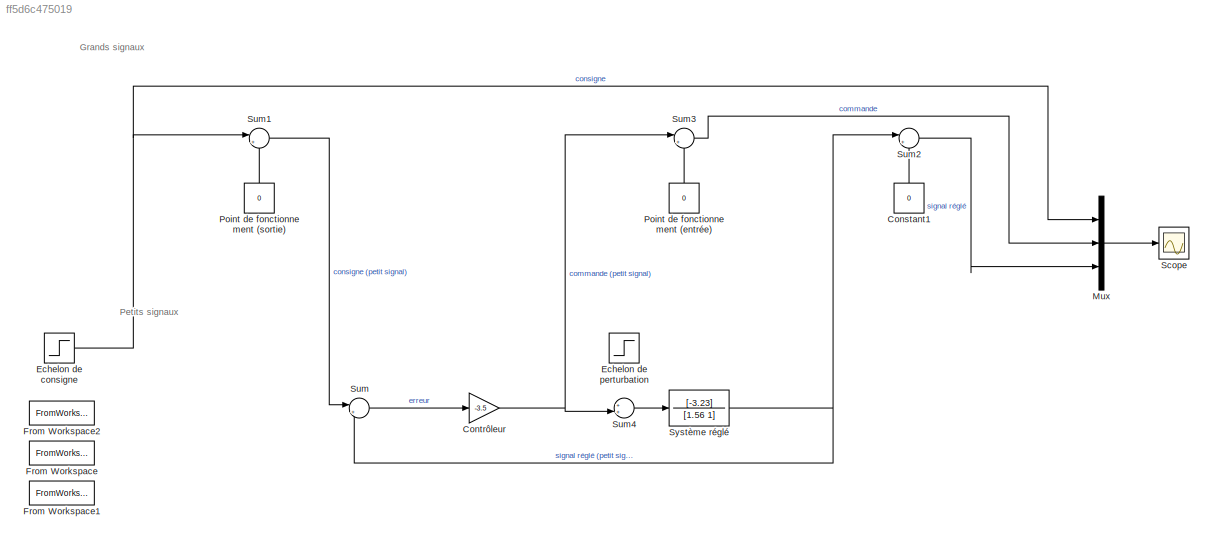
MODEL slx_ff5d6c475019
KIND model
CONFIG AbsTol = auto
CONFIG EnableMultiTasking = off
CONFIG FixedStep = auto
CONFIG MaxStep = auto
CONFIG MinStep = auto
CONFIG RelTol = 1e-3
CONFIG SampleTimeConstraint = Unconstrained
CONFIG Solver = VariableStepAuto
CONFIG SolverName = VariableStepAuto
CONFIG StartTime = 0.0
CONFIG StopTime = 10.0
BLOCK [Constant] Constant1
  NameLocation = right
  Value = 0
BLOCK [Gain] Contrôleur
  Gain = -3.5
BLOCK [Step] Echelon de consigne 
  After = -8
  Before = -4.67
  SampleTime = 0
BLOCK [Step] Echelon de perturbation
  After = 0.5
  NameLocation = right
  SampleTime = 0
BLOCK [FromWorkspace] From Workspace
  VariableName = COM
BLOCK [FromWorkspace] From Workspace1
  VariableName = OUT
BLOCK [FromWorkspace] From Workspace2
  VariableName = REF
BLOCK [Mux] Mux
  DisplayOption = bar
  Inputs = 3
  Ports = [3, 1]
BLOCK [Constant] Point de fonctionnement (entrée)
  Value = 0
BLOCK [Constant] Point de fonctionnement (sortie)
  Value = 0
BLOCK [Scope] Scope
  Floating = off
  NumInputPorts = 1
  Ports = [1]
  ScopeSpecificationString = Simulink.scopes.TimeScopeBlockCfg('CurrentConfiguration', extmgr.ConfigurationSet(extmgr.Configuration('Core','General UI',true,'FigureColor',[0.941176470588235 0.941176470588235 0.941176470588235]),extmgr.Configuration('Core','Source UI',true),extmgr.Configuration('Sources','WiredSimulink',true),extmgr.Configuration('Visuals','Time Domain',true,'SerializedDisplays',{struct('MinYLimReal','-8.6875'...<+1996ch>
BLOCK [Sum] Sum
  Inputs = |+-
  Ports = [2, 1]
BLOCK [Sum] Sum1
  Inputs = |+-
  Ports = [2, 1]
BLOCK [Sum] Sum2
  Inputs = |++
  Ports = [2, 1]
BLOCK [Sum] Sum3
  Inputs = |++
  NameLocation = top
  Ports = [2, 1]
BLOCK [Sum] Sum4
  Inputs = ++|
  NameLocation = top
  Ports = [2, 1]
BLOCK [TransferFcn] Système réglé
  Denominator = [1.56 1]
  Numerator = [-3.23]
ANNOTATION (root): Grands signaux
ANNOTATION (root): Petits signaux
LINE Constant1:1 -> Sum2:2
NET Contrôleur:1 -> Sum3:1, Sum4:2
NET Echelon de consigne :1 -> Mux:1, Sum1:1
LINE Mux:1 -> Scope:1
LINE Point de fonctionnement (entrée):1 -> Sum3:2
LINE Point de fonctionnement (sortie):1 -> Sum1:2
LINE Sum1:1 -> Sum:1
LINE Sum2:1 -> Mux:3
LINE Sum3:1 -> Mux:2
LINE Sum4:1 -> Système réglé:1
LINE Sum:1 -> Contrôleur:1
NET Système réglé:1 -> Sum2:1, Sum:2
note: NET lines group one-source signal fan-out (src -> all destinations, sorted); 1:1 wires keep LINE
